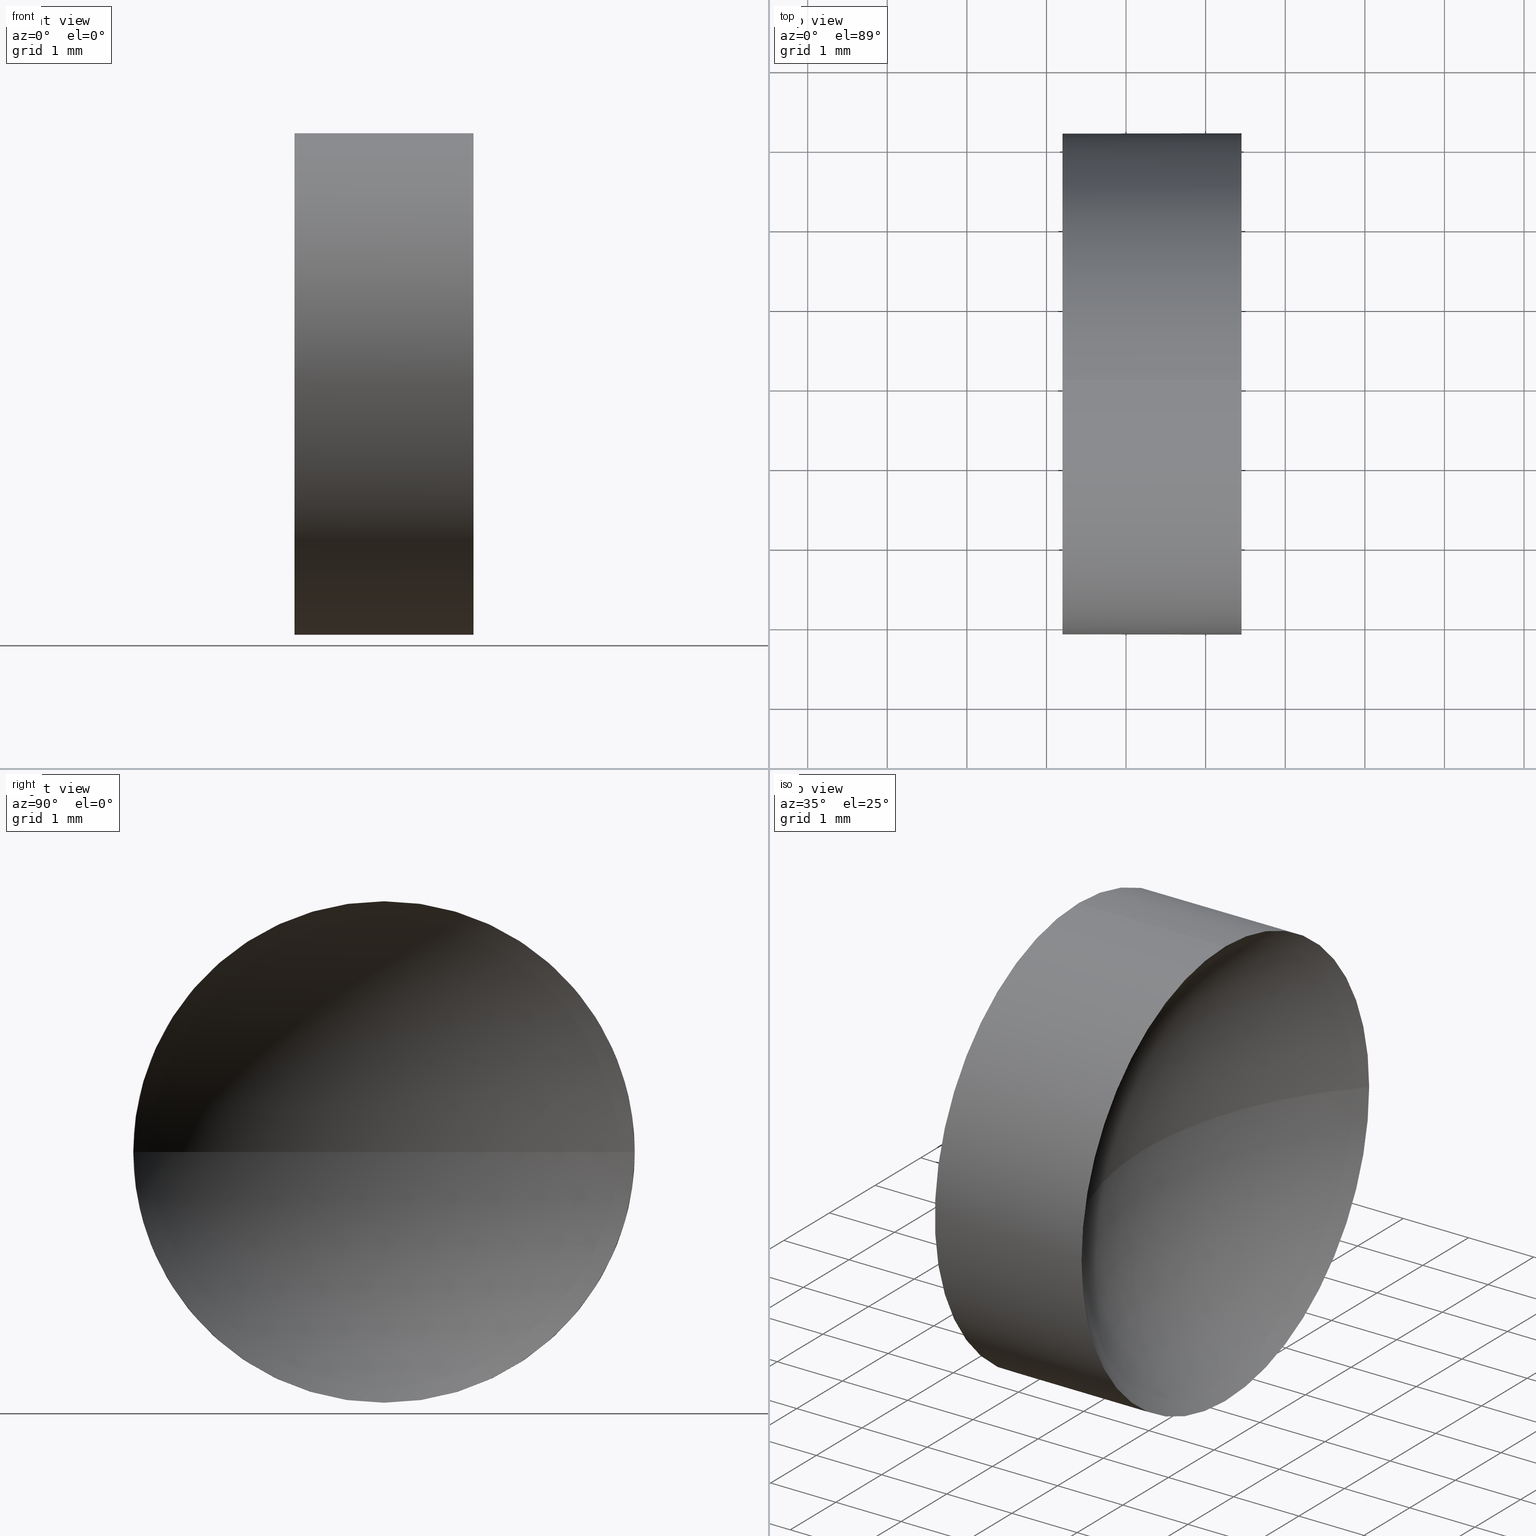
[diagram: canonical four-view strip — front | top / right | iso, engineering-drawing reading convention]
A machine part, canonical four-view strip (front | top / right | iso — engineering-drawing reading convention). The complete STEP part file that produces these views, byte-faithful:
ISO-10303-21;
HEADER;
FILE_DESCRIPTION (( 'STEP AP214' ),
    '1' );
FILE_NAME ('120244.STEP',
    '2019-06-24T05:53:55',
    ( '' ),
    ( '' ),
    'SwSTEP 2.0',
    'SolidWorks 2016',
    '' );
FILE_SCHEMA (( 'AUTOMOTIVE_DESIGN' ));
ENDSEC;

DATA;
#1 =( LENGTH_UNIT ( ) NAMED_UNIT ( * ) SI_UNIT ( .MILLI., .METRE. ) );
#2 = DIRECTION ( 'NONE',  ( -1.000000000000000000, -0.0000000000000000000, -0.0000000000000000000 ) ) ;
#3 = ADVANCED_FACE ( 'NONE', ( #144 ), #106, .T. ) ;
#4 = SURFACE_SIDE_STYLE ('',( #28 ) ) ;
#5 = FACE_OUTER_BOUND ( 'NONE', #109, .T. ) ;
#6 = COLOUR_RGB ( '',1.000000000000000000, 1.000000000000000000, 1.000000000000000000 ) ;
#7 = EDGE_LOOP ( 'NONE', ( #147, #55 ) ) ;
#8 = PRESENTATION_STYLE_ASSIGNMENT (( #53 ) ) ;
#9 = AXIS2_PLACEMENT_3D ( 'NONE', #67, #81, #64 ) ;
#10 = ORIENTED_EDGE ( 'NONE', *, *, #150, .F. ) ;
#11 = DIRECTION ( 'NONE',  ( 0.0000000000000000000, 0.0000000000000000000, 1.000000000000000000 ) ) ;
#12 =( NAMED_UNIT ( * ) SI_UNIT ( $, .STERADIAN. ) SOLID_ANGLE_UNIT ( ) );
#13 = AXIS2_PLACEMENT_3D ( 'NONE', #167, #173, #72 ) ;
#14 = SPHERICAL_SURFACE ( 'NONE', #13, 4.593999999999996800 ) ;
#15 = AXIS2_PLACEMENT_3D ( 'NONE', #84, #157, #34 ) ;
#16 = ORIENTED_EDGE ( 'NONE', *, *, #80, .F. ) ;
#17 = EDGE_LOOP ( 'NONE', ( #41, #94, #16, #10 ) ) ;
#18 = PLANE ( 'NONE',  #31 ) ;
#19 = LINE ( 'NONE', #47, #172 ) ;
#20 = AXIS2_PLACEMENT_3D ( 'NONE', #27, #2, #124 ) ;
#21 = DIRECTION ( 'NONE',  ( 0.0000000000000000000, 0.0000000000000000000, 1.000000000000000000 ) ) ;
#22 = CIRCLE ( 'NONE', #154, 4.593999999999995900 ) ;
#23 = CARTESIAN_POINT ( 'NONE',  ( 21.15647192244426100, 13.03112609140304000, 3.149999999999998100 ) ) ;
#24 = FILL_AREA_STYLE ('',( #112 ) ) ;
#25 = CARTESIAN_POINT ( 'NONE',  ( 24.45087548928661300, 16.18112609140303700, 3.857637417314161200E-016 ) ) ;
#26 = VERTEX_POINT ( 'NONE', #183 ) ;
#27 = CARTESIAN_POINT ( 'NONE',  ( 22.20087548928661300, 13.03112609140304000, 0.0000000000000000000 ) ) ;
#28 = SURFACE_STYLE_FILL_AREA ( #74 ) ;
#29 = ORIENTED_EDGE ( 'NONE', *, *, #134, .T. ) ;
#30 = SURFACE_STYLE_FILL_AREA ( #24 ) ;
#31 = AXIS2_PLACEMENT_3D ( 'NONE', #137, #153, #33 ) ;
#32 = DIRECTION ( 'NONE',  ( 0.0000000000000000000, -1.224646799147353200E-016, 1.000000000000000000 ) ) ;
#33 = DIRECTION ( 'NONE',  ( 0.0000000000000000000, 0.0000000000000000000, -1.000000000000000000 ) ) ;
#34 = DIRECTION ( 'NONE',  ( 0.0000000000000000000, 0.0000000000000000000, 1.000000000000000000 ) ) ;
#35 = CARTESIAN_POINT ( 'NONE',  ( 24.45087548928661300, 13.03112609140304000, -3.149999999999998100 ) ) ;
#36 = DIRECTION ( 'NONE',  ( -1.000000000000000000, -0.0000000000000000000, -0.0000000000000000000 ) ) ;
#37 = CARTESIAN_POINT ( 'NONE',  ( 24.45087548928661300, 13.03112609140304000, 0.0000000000000000000 ) ) ;
#38 = DIRECTION ( 'NONE',  ( -1.000000000000000000, -0.0000000000000000000, -0.0000000000000000000 ) ) ;
#39 = SURFACE_STYLE_USAGE ( .BOTH. , #4 ) ;
#40 = APPLICATION_CONTEXT ( 'automotive_design' ) ;
#41 = ORIENTED_EDGE ( 'NONE', *, *, #88, .F. ) ;
#42 = CIRCLE ( 'NONE', #20, 3.149999999999998100 ) ;
#43 = AXIS2_PLACEMENT_3D ( 'NONE', #87, #97, #115 ) ;
#44 = PRODUCT ( '120244', '120244', '', ( #116 ) ) ;
#45 = VERTEX_POINT ( 'NONE', #108 ) ;
#46 = STYLED_ITEM ( 'NONE', ( #151 ), #105 ) ;
#47 = CARTESIAN_POINT ( 'NONE',  ( 21.15647192244426100, 13.03112609140304000, -3.149999999999998100 ) ) ;
#48 = EDGE_CURVE ( 'NONE', #114, #45, #22, .T. ) ;
#49 = DIRECTION ( 'NONE',  ( 0.0000000000000000000, -1.000000000000000000, -1.224646799147353500E-016 ) ) ;
#50 =( NAMED_UNIT ( * ) PLANE_ANGLE_UNIT ( ) SI_UNIT ( $, .RADIAN. ) );
#51 = STYLED_ITEM ( 'NONE', ( #8 ), #177 ) ;
#52 = CARTESIAN_POINT ( 'NONE',  ( 27.79487548928660700, 13.03112609140304000, 0.0000000000000000000 ) ) ;
#53 = SURFACE_STYLE_USAGE ( .BOTH. , #145 ) ;
#54 = FILL_AREA_STYLE_COLOUR ( '', #6 ) ;
#55 = ORIENTED_EDGE ( 'NONE', *, *, #60, .T. ) ;
#56 =( NAMED_UNIT ( * ) SI_UNIT ( $, .STERADIAN. ) SOLID_ANGLE_UNIT ( ) );
#57 = ORIENTED_EDGE ( 'NONE', *, *, #60, .F. ) ;
#58 = ADVANCED_FACE ( 'NONE', ( #175 ), #18, .F. ) ;
#59 = DIRECTION ( 'NONE',  ( 1.000000000000000000, 0.0000000000000000000, 0.0000000000000000000 ) ) ;
#60 = EDGE_CURVE ( 'NONE', #131, #91, #65, .T. ) ;
#61 = CIRCLE ( 'NONE', #135, 3.149999999999998100 ) ;
#62 = ORIENTED_EDGE ( 'NONE', *, *, #88, .T. ) ;
#63 = AXIS2_PLACEMENT_3D ( 'NONE', #113, #36, #143 ) ;
#64 = DIRECTION ( 'NONE',  ( 0.0000000000000000000, 0.0000000000000000000, 1.000000000000000000 ) ) ;
#65 = CIRCLE ( 'NONE', #98, 3.149999999999998100 ) ;
#66 = CARTESIAN_POINT ( 'NONE',  ( 22.20087548928661300, 13.03112609140304000, 0.0000000000000000000 ) ) ;
#67 = CARTESIAN_POINT ( 'NONE',  ( 21.15647192244426100, 13.03112609140304000, 0.0000000000000000000 ) ) ;
#68 =( GEOMETRIC_REPRESENTATION_CONTEXT ( 3 ) GLOBAL_UNCERTAINTY_ASSIGNED_CONTEXT ( ( #185 ) ) GLOBAL_UNIT_ASSIGNED_CONTEXT ( ( #1, #50, #82 ) ) REPRESENTATION_CONTEXT ( 'NONE', 'WORKASPACE' ) );
#69 = CARTESIAN_POINT ( 'NONE',  ( 22.20087548928661300, 13.03112609140304000, 3.149999999999998100 ) ) ;
#70 = CARTESIAN_POINT ( 'NONE',  ( 24.45087548928661300, 13.03112609140304000, 0.0000000000000000000 ) ) ;
#71 = EDGE_CURVE ( 'NONE', #164, #131, #19, .T. ) ;
#72 = DIRECTION ( 'NONE',  ( 0.0000000000000000000, -1.000000000000000000, 0.0000000000000000000 ) ) ;
#73 = CARTESIAN_POINT ( 'NONE',  ( 0.0000000000000000000, 0.0000000000000000000, 0.0000000000000000000 ) ) ;
#74 = FILL_AREA_STYLE ('',( #54 ) ) ;
#75 = DIRECTION ( 'NONE',  ( 0.0000000000000000000, 0.0000000000000000000, 1.000000000000000000 ) ) ;
#76 = PRESENTATION_LAYER_ASSIGNMENT (  '', '', ( #46 ) ) ;
#77 = FACE_OUTER_BOUND ( 'NONE', #139, .T. ) ;
#78 = AXIS2_PLACEMENT_3D ( 'NONE', #73, #75, #59 ) ;
#79 = VERTEX_POINT ( 'NONE', #138 ) ;
#80 = EDGE_CURVE ( 'NONE', #79, #45, #156, .T. ) ;
#81 = DIRECTION ( 'NONE',  ( -1.000000000000000000, -0.0000000000000000000, -0.0000000000000000000 ) ) ;
#82 =( NAMED_UNIT ( * ) SI_UNIT ( $, .STERADIAN. ) SOLID_ANGLE_UNIT ( ) );
#83 = MECHANICAL_DESIGN_GEOMETRIC_PRESENTATION_REPRESENTATION (  '', ( #51 ), #101 ) ;
#84 = CARTESIAN_POINT ( 'NONE',  ( 24.45087548928661300, 13.03112609140304000, 0.0000000000000000000 ) ) ;
#85 = ORIENTED_EDGE ( 'NONE', *, *, #161, .F. ) ;
#86 = CIRCLE ( 'NONE', #63, 3.149999999999998100 ) ;
#87 = CARTESIAN_POINT ( 'NONE',  ( 27.79487548928660700, 13.03112609140304000, 0.0000000000000000000 ) ) ;
#88 = EDGE_CURVE ( 'NONE', #114, #164, #117, .T. ) ;
#89 = APPLICATION_PROTOCOL_DEFINITION ( 'draft international standard', 'automotive_design', 1998, #40 ) ;
#90 =( NAMED_UNIT ( * ) PLANE_ANGLE_UNIT ( ) SI_UNIT ( $, .RADIAN. ) );
#91 = VERTEX_POINT ( 'NONE', #69 ) ;
#92 = PRODUCT_DEFINITION_CONTEXT ( 'detailed design', #158, 'design' ) ;
#93 = VECTOR ( 'NONE', #142, 1000.000000000000000 ) ;
#94 = ORIENTED_EDGE ( 'NONE', *, *, #48, .T. ) ;
#95 = CARTESIAN_POINT ( 'NONE',  ( 22.20087548928661300, 13.03112609140304000, -3.149999999999998100 ) ) ;
#96 = COLOUR_RGB ( '',1.000000000000000000, 1.000000000000000000, 1.000000000000000000 ) ;
#97 = DIRECTION ( 'NONE',  ( 0.0000000000000000000, 0.0000000000000000000, -1.000000000000000000 ) ) ;
#98 = AXIS2_PLACEMENT_3D ( 'NONE', #66, #122, #11 ) ;
#99 = DIRECTION ( 'NONE',  ( 0.0000000000000000000, 0.0000000000000000000, 1.000000000000000000 ) ) ;
#100 = ORIENTED_EDGE ( 'NONE', *, *, #71, .T. ) ;
#101 =( GEOMETRIC_REPRESENTATION_CONTEXT ( 3 ) GLOBAL_UNCERTAINTY_ASSIGNED_CONTEXT ( ( #149 ) ) GLOBAL_UNIT_ASSIGNED_CONTEXT ( ( #168, #186, #12 ) ) REPRESENTATION_CONTEXT ( 'NONE', 'WORKASPACE' ) );
#102 = ORIENTED_EDGE ( 'NONE', *, *, #161, .T. ) ;
#103 = SHAPE_DEFINITION_REPRESENTATION ( #148, #105 ) ;
#104 = APPLICATION_PROTOCOL_DEFINITION ( 'draft international standard', 'automotive_design', 1998, #158 ) ;
#105 = ADVANCED_BREP_SHAPE_REPRESENTATION ( '120244', ( #177, #78 ), #68 ) ;
#106 = CYLINDRICAL_SURFACE ( 'NONE', #9, 3.149999999999998100 ) ;
#107 = AXIS2_PLACEMENT_3D ( 'NONE', #70, #170, #171 ) ;
#108 = CARTESIAN_POINT ( 'NONE',  ( 23.20087548928660900, 13.03112609140304000, 0.0000000000000000000 ) ) ;
#109 = EDGE_LOOP ( 'NONE', ( #160, #181, #102, #29, #57 ) ) ;
#110 = LINE ( 'NONE', #23, #93 ) ;
#111 = UNCERTAINTY_MEASURE_WITH_UNIT (LENGTH_MEASURE( 1.000000000000000100E-005 ), #159, 'distance_accuracy_value', 'NONE');
#112 = FILL_AREA_STYLE_COLOUR ( '', #96 ) ;
#113 = CARTESIAN_POINT ( 'NONE',  ( 24.45087548928661300, 13.03112609140304000, 0.0000000000000000000 ) ) ;
#114 = VERTEX_POINT ( 'NONE', #25 ) ;
#115 = DIRECTION ( 'NONE',  ( -1.000000000000000000, 0.0000000000000000000, 0.0000000000000000000 ) ) ;
#116 = PRODUCT_CONTEXT ( 'NONE', #40, 'mechanical' ) ;
#117 = CIRCLE ( 'NONE', #107, 3.149999999999998100 ) ;
#118 = ADVANCED_FACE ( 'NONE', ( #77 ), #14, .F. ) ;
#119 = MECHANICAL_DESIGN_GEOMETRIC_PRESENTATION_REPRESENTATION (  '', ( #46 ), #176 ) ;
#120 = SPHERICAL_SURFACE ( 'NONE', #140, 4.593999999999996800 ) ;
#121 = CARTESIAN_POINT ( 'NONE',  ( 27.79487548928660700, 13.03112609140304000, 0.0000000000000000000 ) ) ;
#122 = DIRECTION ( 'NONE',  ( -1.000000000000000000, -0.0000000000000000000, -0.0000000000000000000 ) ) ;
#123 = ORIENTED_EDGE ( 'NONE', *, *, #169, .T. ) ;
#124 = DIRECTION ( 'NONE',  ( 0.0000000000000000000, 0.0000000000000000000, 1.000000000000000000 ) ) ;
#125 = DIRECTION ( 'NONE',  ( -1.000000000000000000, -0.0000000000000000000, -0.0000000000000000000 ) ) ;
#126 = ORIENTED_EDGE ( 'NONE', *, *, #48, .F. ) ;
#127 = DIRECTION ( 'NONE',  ( 0.0000000000000000000, 0.0000000000000000000, 1.000000000000000000 ) ) ;
#128 = ORIENTED_EDGE ( 'NONE', *, *, #80, .T. ) ;
#129 = CIRCLE ( 'NONE', #15, 3.149999999999998100 ) ;
#130 = ADVANCED_FACE ( 'NONE', ( #5 ), #133, .T. ) ;
#131 = VERTEX_POINT ( 'NONE', #95 ) ;
#132 = ORIENTED_EDGE ( 'NONE', *, *, #134, .F. ) ;
#133 = CYLINDRICAL_SURFACE ( 'NONE', #178, 3.149999999999998100 ) ;
#134 = EDGE_CURVE ( 'NONE', #26, #91, #110, .T. ) ;
#135 = AXIS2_PLACEMENT_3D ( 'NONE', #37, #125, #99 ) ;
#136 = EDGE_LOOP ( 'NONE', ( #62, #100, #179, #132, #123 ) ) ;
#137 = CARTESIAN_POINT ( 'NONE',  ( 22.20087548928661300, 13.03112609140304000, 0.0000000000000000000 ) ) ;
#138 = CARTESIAN_POINT ( 'NONE',  ( 24.45087548928661300, 9.881126091403041700, 0.0000000000000000000 ) ) ;
#139 = EDGE_LOOP ( 'NONE', ( #126, #152, #85, #128 ) ) ;
#140 = AXIS2_PLACEMENT_3D ( 'NONE', #52, #127, #155 ) ;
#141 = FACE_OUTER_BOUND ( 'NONE', #17, .T. ) ;
#142 = DIRECTION ( 'NONE',  ( -1.000000000000000000, -0.0000000000000000000, -0.0000000000000000000 ) ) ;
#143 = DIRECTION ( 'NONE',  ( 0.0000000000000000000, 0.0000000000000000000, 1.000000000000000000 ) ) ;
#144 = FACE_OUTER_BOUND ( 'NONE', #136, .T. ) ;
#145 = SURFACE_SIDE_STYLE ('',( #30 ) ) ;
#146 = PRODUCT_DEFINITION_FORMATION_WITH_SPECIFIED_SOURCE ( '�κ�', '', #44, .NOT_KNOWN. ) ;
#147 = ORIENTED_EDGE ( 'NONE', *, *, #180, .T. ) ;
#148 = PRODUCT_DEFINITION_SHAPE ( 'NONE', 'NONE',  #182 ) ;
#149 = UNCERTAINTY_MEASURE_WITH_UNIT (LENGTH_MEASURE( 1.000000000000000100E-005 ), #168, 'distance_accuracy_value', 'NONE');
#150 = EDGE_CURVE ( 'NONE', #164, #79, #86, .T. ) ;
#151 = PRESENTATION_STYLE_ASSIGNMENT (( #39 ) ) ;
#152 = ORIENTED_EDGE ( 'NONE', *, *, #169, .F. ) ;
#153 = DIRECTION ( 'NONE',  ( 1.000000000000000000, 0.0000000000000000000, 0.0000000000000000000 ) ) ;
#154 = AXIS2_PLACEMENT_3D ( 'NONE', #121, #32, #49 ) ;
#155 = DIRECTION ( 'NONE',  ( 0.0000000000000000000, -1.000000000000000000, 0.0000000000000000000 ) ) ;
#156 = CIRCLE ( 'NONE', #43, 4.593999999999997600 ) ;
#157 = DIRECTION ( 'NONE',  ( -1.000000000000000000, -0.0000000000000000000, -0.0000000000000000000 ) ) ;
#158 = APPLICATION_CONTEXT ( 'automotive_design' ) ;
#159 =( LENGTH_UNIT ( ) NAMED_UNIT ( * ) SI_UNIT ( .MILLI., .METRE. ) );
#160 = ORIENTED_EDGE ( 'NONE', *, *, #71, .F. ) ;
#161 = EDGE_CURVE ( 'NONE', #79, #26, #61, .T. ) ;
#162 = PRESENTATION_LAYER_ASSIGNMENT (  '', '', ( #51 ) ) ;
#163 = CLOSED_SHELL ( 'NONE', ( #3, #174, #118, #130, #58 ) ) ;
#164 = VERTEX_POINT ( 'NONE', #35 ) ;
#165 = DIRECTION ( 'NONE',  ( -1.000000000000000000, -0.0000000000000000000, -0.0000000000000000000 ) ) ;
#166 = PRODUCT_RELATED_PRODUCT_CATEGORY ( 'part', '', ( #44 ) ) ;
#167 = CARTESIAN_POINT ( 'NONE',  ( 27.79487548928660700, 13.03112609140304000, 0.0000000000000000000 ) ) ;
#168 =( LENGTH_UNIT ( ) NAMED_UNIT ( * ) SI_UNIT ( .MILLI., .METRE. ) );
#169 = EDGE_CURVE ( 'NONE', #26, #114, #129, .T. ) ;
#170 = DIRECTION ( 'NONE',  ( -1.000000000000000000, -0.0000000000000000000, -0.0000000000000000000 ) ) ;
#171 = DIRECTION ( 'NONE',  ( 0.0000000000000000000, 0.0000000000000000000, 1.000000000000000000 ) ) ;
#172 = VECTOR ( 'NONE', #165, 1000.000000000000000 ) ;
#173 = DIRECTION ( 'NONE',  ( 0.0000000000000000000, 0.0000000000000000000, 1.000000000000000000 ) ) ;
#174 = ADVANCED_FACE ( 'NONE', ( #141 ), #120, .F. ) ;
#175 = FACE_OUTER_BOUND ( 'NONE', #7, .T. ) ;
#176 =( GEOMETRIC_REPRESENTATION_CONTEXT ( 3 ) GLOBAL_UNCERTAINTY_ASSIGNED_CONTEXT ( ( #111 ) ) GLOBAL_UNIT_ASSIGNED_CONTEXT ( ( #159, #90, #56 ) ) REPRESENTATION_CONTEXT ( 'NONE', 'WORKASPACE' ) );
#177 = MANIFOLD_SOLID_BREP ( '��ת1', #163 ) ;
#178 = AXIS2_PLACEMENT_3D ( 'NONE', #184, #38, #21 ) ;
#179 = ORIENTED_EDGE ( 'NONE', *, *, #180, .F. ) ;
#180 = EDGE_CURVE ( 'NONE', #91, #131, #42, .T. ) ;
#181 = ORIENTED_EDGE ( 'NONE', *, *, #150, .T. ) ;
#182 = PRODUCT_DEFINITION ( 'δ֪', '', #146, #92 ) ;
#183 = CARTESIAN_POINT ( 'NONE',  ( 24.45087548928661300, 13.03112609140304000, 3.149999999999998100 ) ) ;
#184 = CARTESIAN_POINT ( 'NONE',  ( 21.15647192244426100, 13.03112609140304000, 0.0000000000000000000 ) ) ;
#185 = UNCERTAINTY_MEASURE_WITH_UNIT (LENGTH_MEASURE( 1.000000000000000100E-005 ), #1, 'distance_accuracy_value', 'NONE');
#186 =( NAMED_UNIT ( * ) PLANE_ANGLE_UNIT ( ) SI_UNIT ( $, .RADIAN. ) );
ENDSEC;
END-ISO-10303-21;
